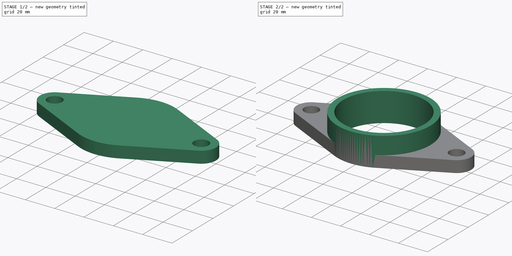
[diagram: build sequence overview — one tinted view per stage of 2, left to right]
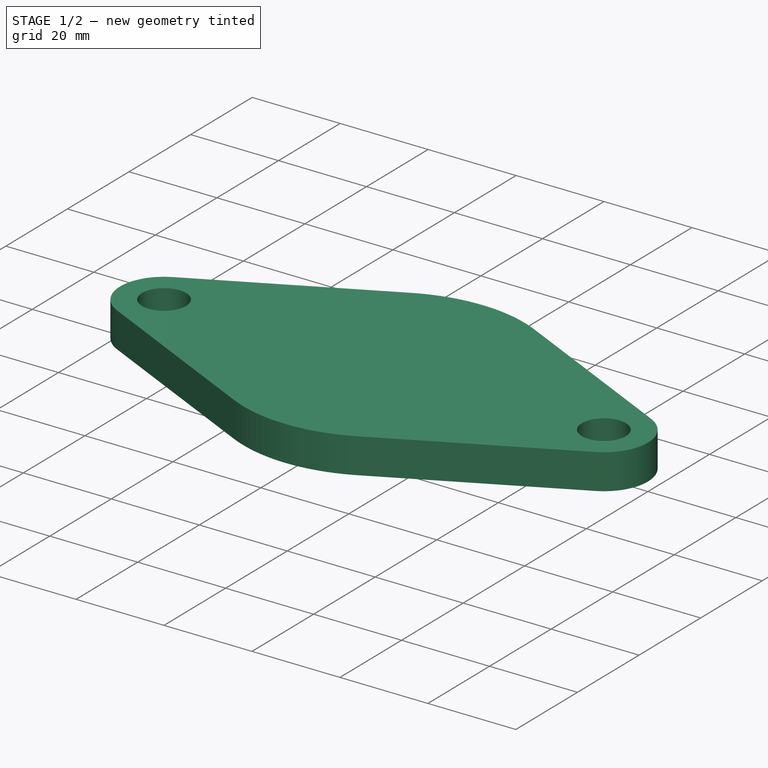
[diagram: stage 1 of 2 — iso view after this stage's code; geometry added in this stage tinted green]
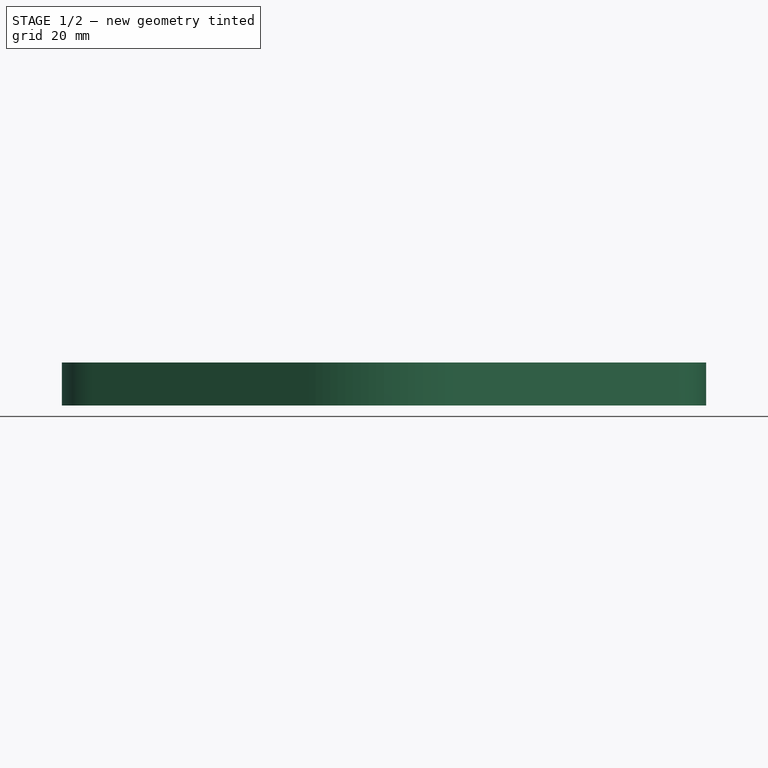
[diagram: stage 1 of 2 — front view after this stage's code; geometry added in this stage tinted green]
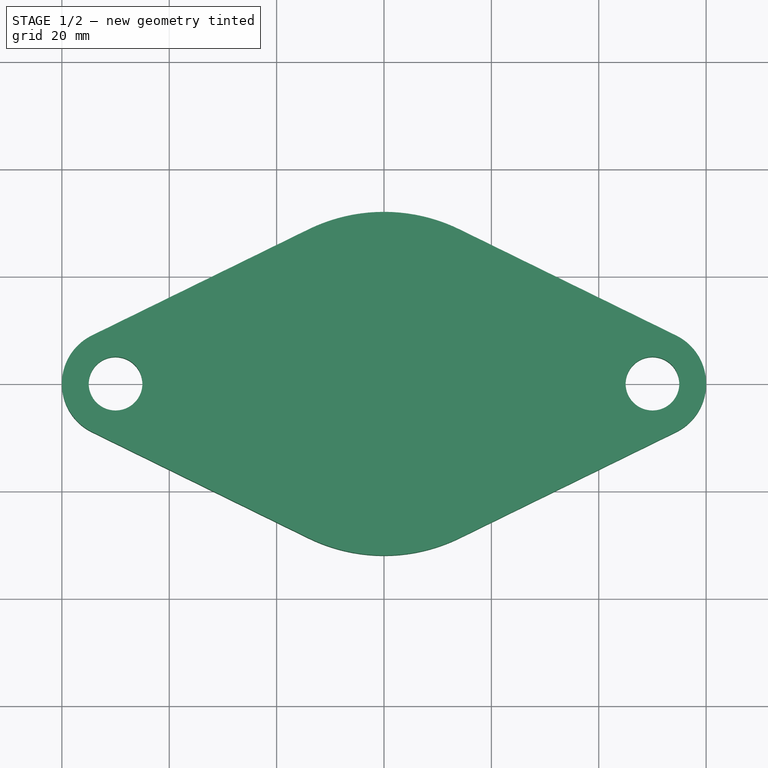
[diagram: stage 1 of 2 — top view after this stage's code; geometry added in this stage tinted green]
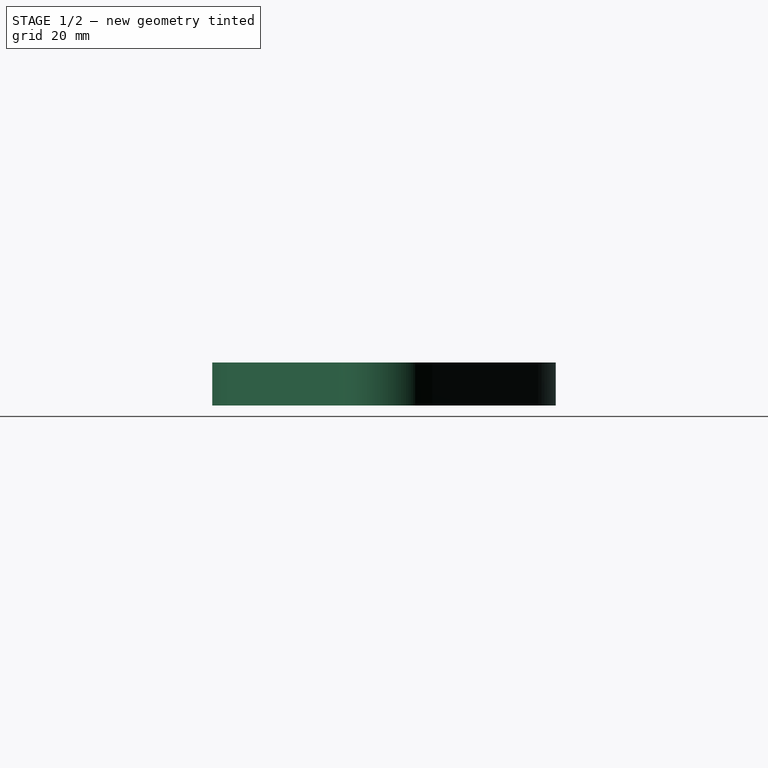
[diagram: stage 1 of 2 — right view after this stage's code; geometry added in this stage tinted green]
FCSTD DOCUMENT  (FreeCAD 0.19R23463 (Git))
Label: uebung3
License: All rights reserved
LicenseURL: http://en.wikipedia.org/wiki/All_rights_reserved
objects: Sketcher::SketchObject×3, PartDesign::Pad×2, PartDesign::Mirrored×1, PartDesign::Pocket×1, PartDesign::Body×1
note: 11 computed .brp shape members not serialized (recipe doc carries the construction recipe); baked Part::Feature solids carry a one-line shape summary decoded from their .brp

FEATURE [Sketcher::SketchObject] Sketch  label="sk_halbes_flanschprofil"
  MapMode = 5
  Support = -> [XY_Plane]
  sketch-geometry (7):
    g0: Circle CenterX=-50 CenterY=3e-15 CenterZ=0 NormalX=0 NormalY=0 NormalZ=1 AngleXU=0 Radius=5
    g1: LineSegment StartX=-54.4 StartY=8.97998 StartZ=0 EndX=-14.08 EndY=28.7359 EndZ=0
    g2: ArcOfCircle CenterX=0 CenterY=0 CenterZ=0 NormalX=0 NormalY=0 NormalZ=1 AngleXU=0 Radius=32 StartAngle=1.5708 EndAngle=2.0264
    g3: ArcOfCircle CenterX=-50 CenterY=3e-15 CenterZ=0 NormalX=0 NormalY=0 NormalZ=1 AngleXU=0 Radius=10 StartAngle=2.0264 EndAngle=4.25679
    g4: LineSegment StartX=-54.4 StartY=-8.97998 StartZ=0 EndX=-14.08 EndY=-28.7359 EndZ=0
    g5: ArcOfCircle CenterX=0 CenterY=0 CenterZ=0 NormalX=0 NormalY=0 NormalZ=1 AngleXU=0 Radius=32 StartAngle=4.25679 EndAngle=4.71239
    g6: LineSegment StartX=-5.9e-15 StartY=-32 StartZ=0 EndX=0 EndY=32 EndZ=0
  constraints (17):
    c: Diameter(g0) = 10
    c: DistanceX(g0,g-1) = 50
    c: Tangent(g1,g2) = 1.5708
    c: PointOnObject(g2,g-2)
    c: Coincident(g2,g-1)
    c: Radius(g2) = 32
    c: Tangent(g1,g3) = 1.5708
    c: Tangent(g3,g4) = -1.5708
    c: Tangent(g4,g5) = -1.5708
    c: PointOnObject(g5,g-2)
    c: Coincident(g5,g6)
    c: Coincident(g6,g2)
    c: Coincident(g5,g2)
    c: Equal(g4,g1)
    c: Symmetric(g3,g1,g-1)
    c: Radius(g3) = 10
    c: Coincident(g3,g0)
FEATURE [PartDesign::Pad] Pad  label="halbes_flanschprofil"
  Direction = (1,1,1)
  Length = 8
  Length2 = 100
  Profile = -> Sketch
  Refine = true
  Type = 0
FEATURE [PartDesign::Mirrored] Mirrored  label="ganzes_flanschprofil"
  BaseFeature = -> Pad
  MirrorPlane = -> Sketch [V_Axis]
  Originals = -> [Pad]
  Refine = true
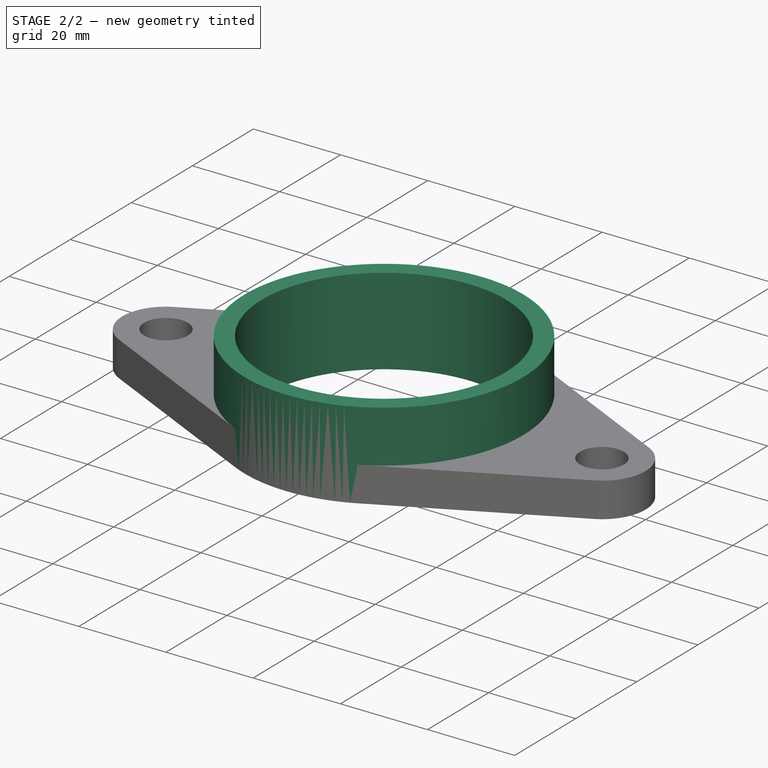
[diagram: stage 2 of 2 — iso view after this stage's code; geometry added in this stage tinted green]
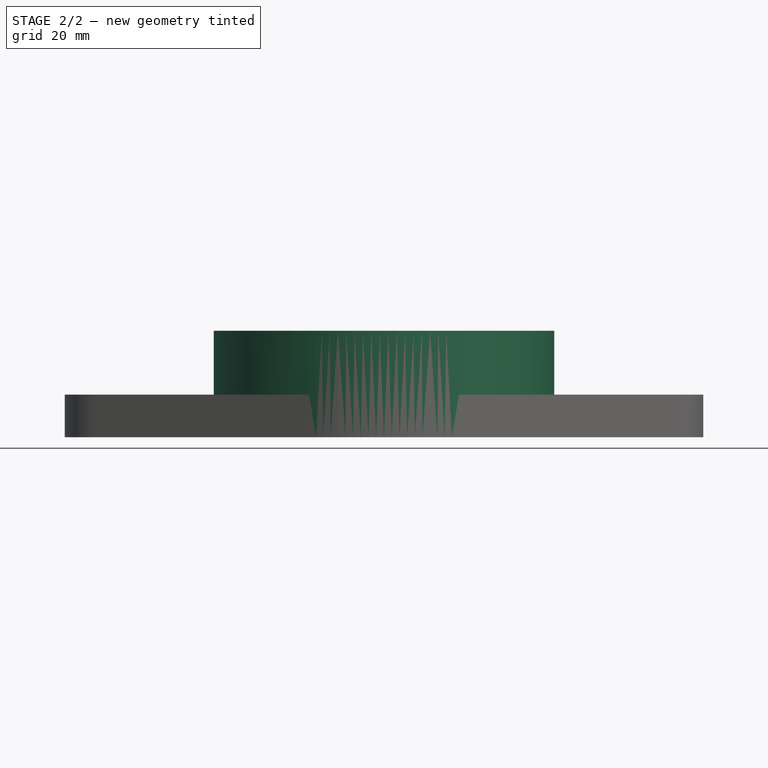
[diagram: stage 2 of 2 — front view after this stage's code; geometry added in this stage tinted green]
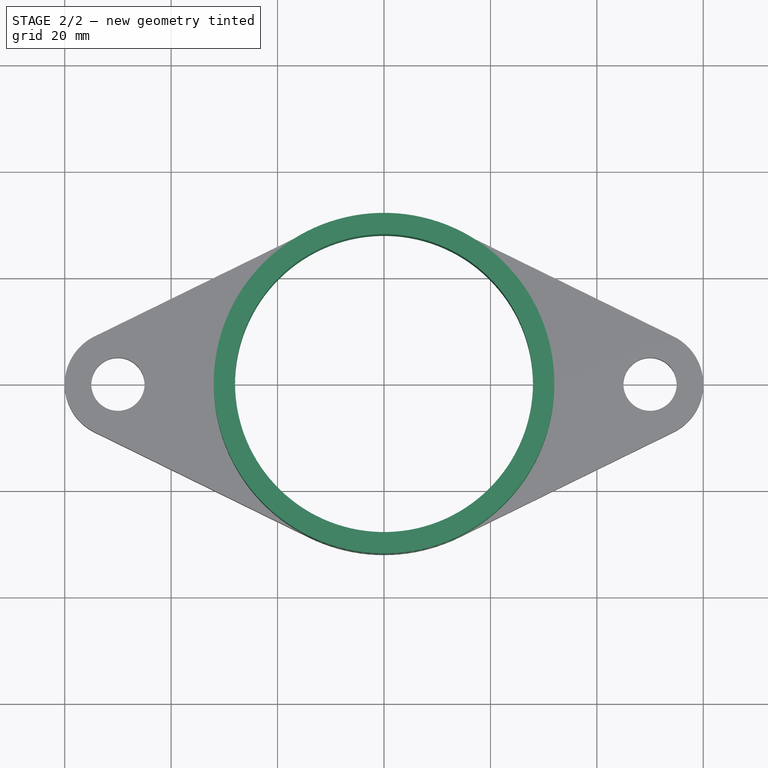
[diagram: stage 2 of 2 — top view after this stage's code; geometry added in this stage tinted green]
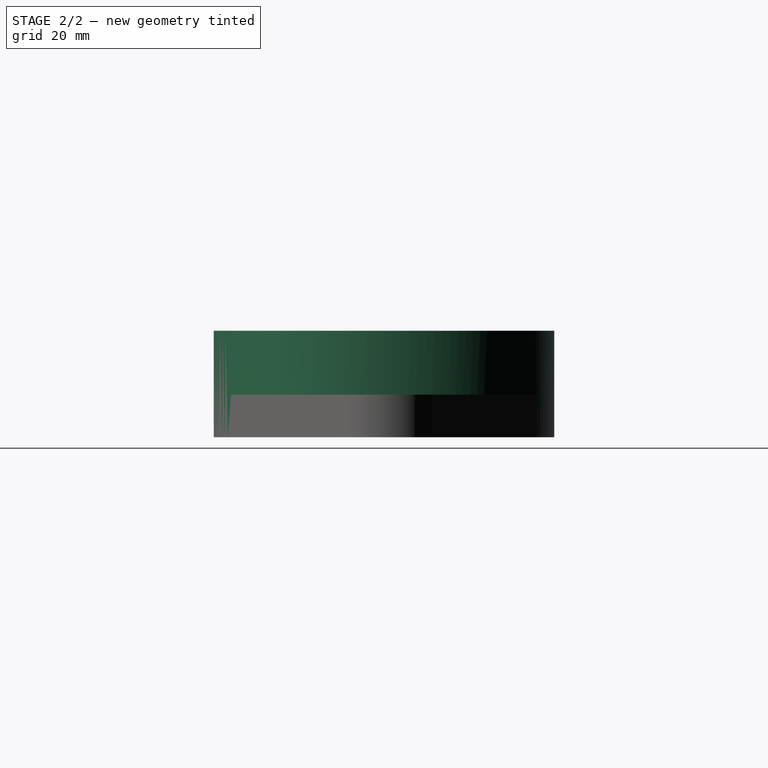
[diagram: stage 2 of 2 — right view after this stage's code; geometry added in this stage tinted green]
FEATURE [Sketcher::SketchObject] Sketch001  label="sk_aussen"
  MapMode = 5
  Support = -> [XY_Plane]
  sketch-geometry (1):
    g0: Circle CenterX=0 CenterY=0 CenterZ=0 NormalX=0 NormalY=0 NormalZ=1 AngleXU=0 Radius=32
  constraints (2):
    c: Coincident(g0,g-1)
    c: Radius(g0) = 32
FEATURE [PartDesign::Pad] Pad001  label="pad_aussen"
  BaseFeature = -> Mirrored
  Direction = (1,1,1)
  Length = 20
  Length2 = 100
  Profile = -> Sketch001
  Refine = true
  Type = 0
FEATURE [Sketcher::SketchObject] Sketch002  label="sk_innen"
  MapMode = 5
  Support = -> [XY_Plane]
  sketch-geometry (1):
    g0: Circle CenterX=0 CenterY=0 CenterZ=0 NormalX=0 NormalY=0 NormalZ=1 AngleXU=0 Radius=28
  constraints (2):
    c: Coincident(g0,g-1)
    c: Diameter(g0) = 56
FEATURE [PartDesign::Pocket] Pocket  label="loch_mitte"
  BaseFeature = -> Pad001
  Length = 5
  Length2 = 100
  Profile = -> Sketch002
  Refine = true
  Reversed = true
  Type = 1
FEATURE [PartDesign::Body] Body
  Group = -> [Sketch,Pad,Mirrored,Sketch001,Pad001,Sketch002,Pocket]
  Origin = -> Origin
  Tip = -> Pocket
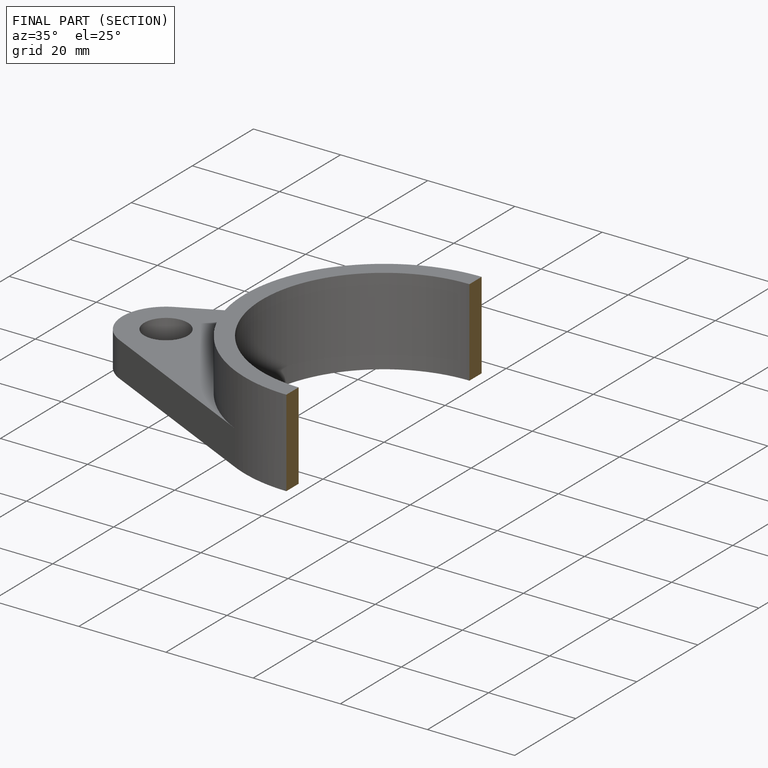
[diagram: finished part — half-section view (interior)]
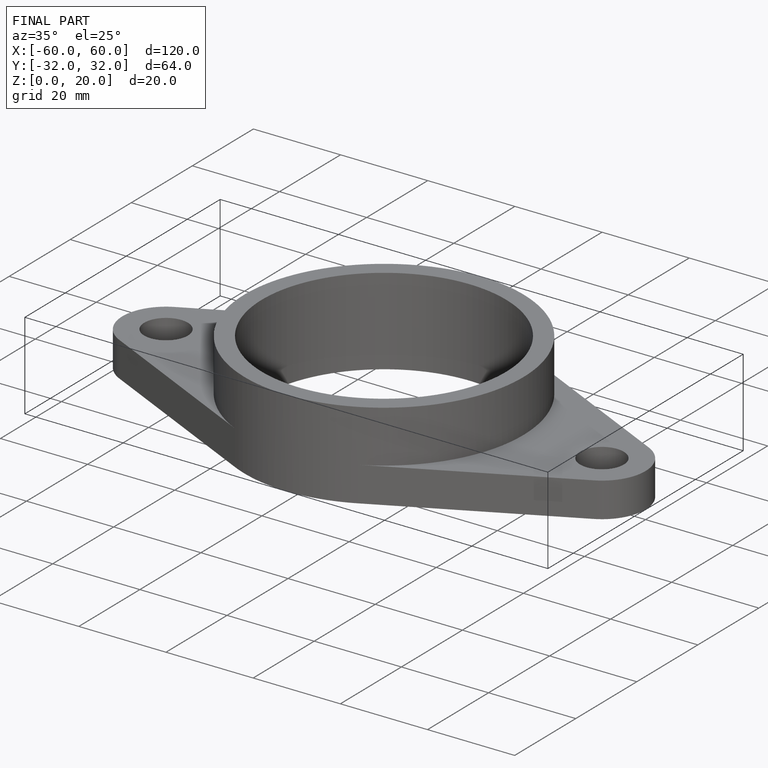
[diagram: finished part — iso view with bounding-box wireframe]
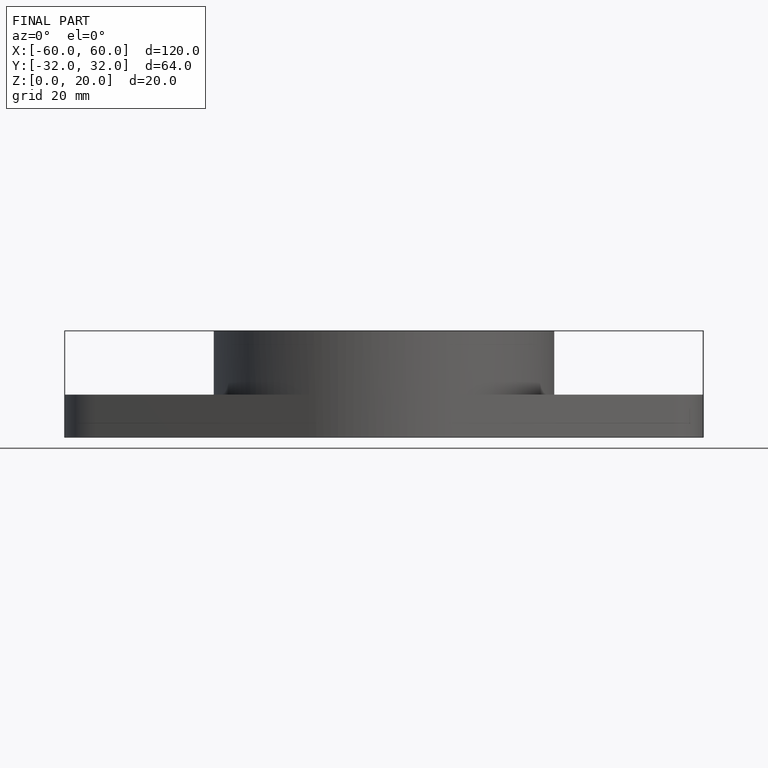
[diagram: finished part — front view with bounding-box wireframe]
